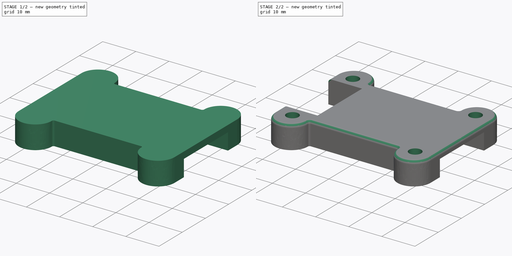
[diagram: build sequence overview — one tinted view per stage of 2, left to right]
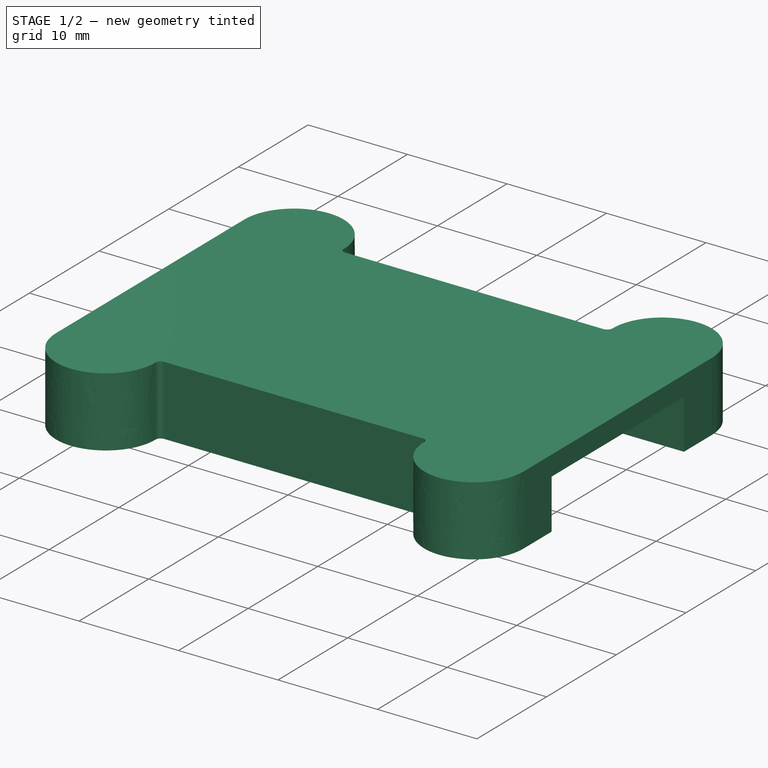
[diagram: stage 1 of 2 — iso view after this stage's code; geometry added in this stage tinted green]
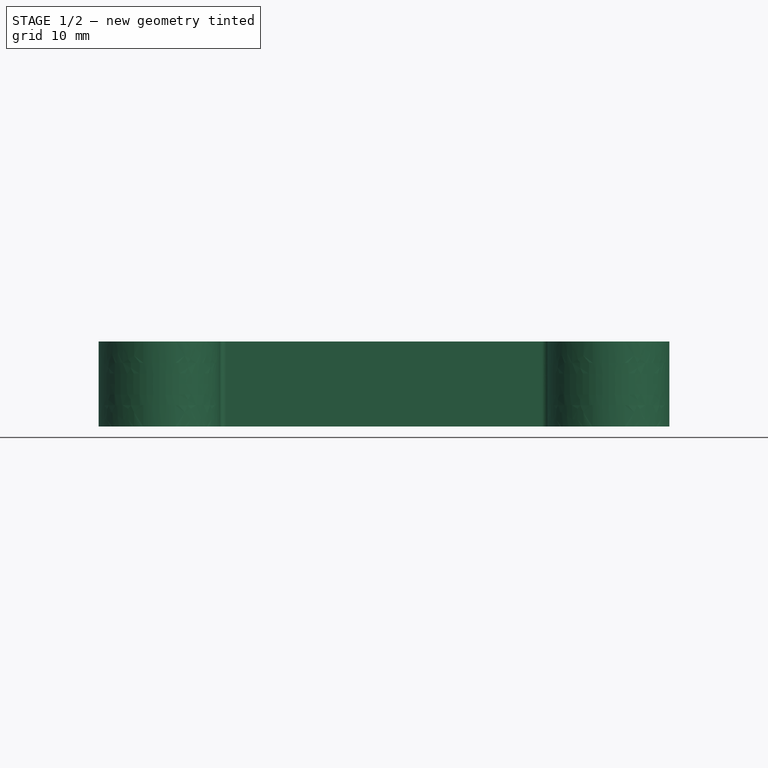
[diagram: stage 1 of 2 — front view after this stage's code; geometry added in this stage tinted green]
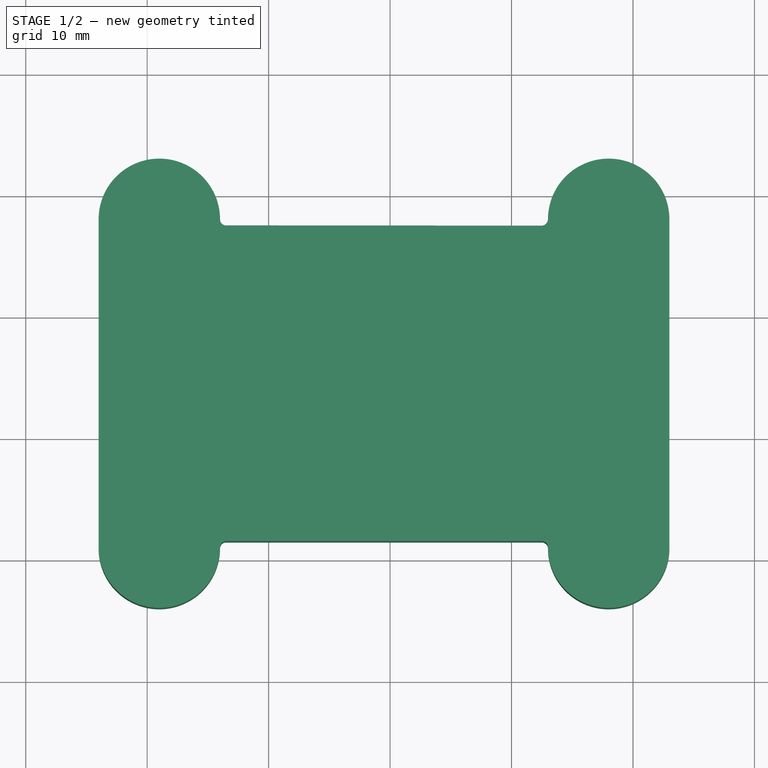
[diagram: stage 1 of 2 — top view after this stage's code; geometry added in this stage tinted green]
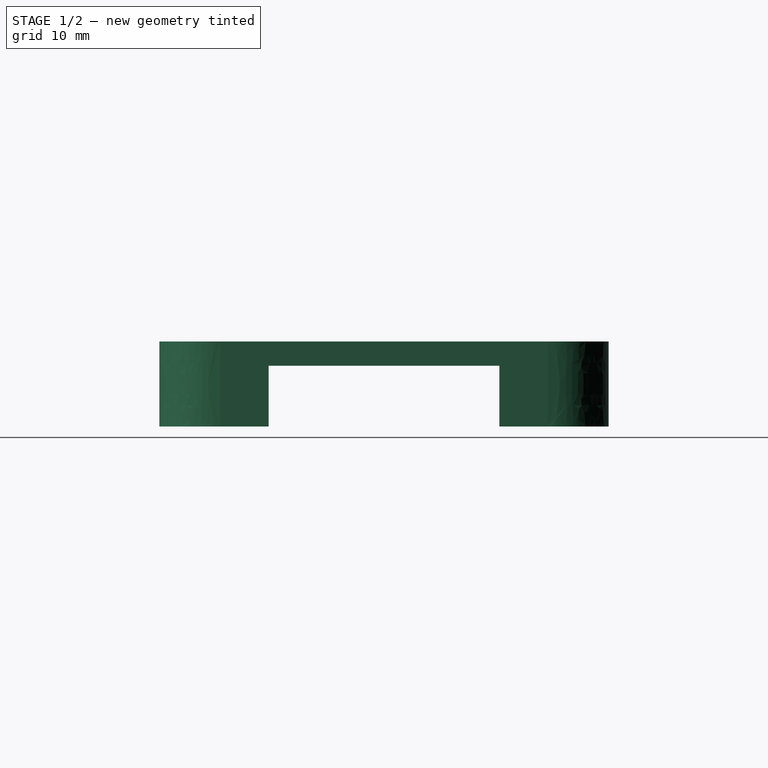
[diagram: stage 1 of 2 — right view after this stage's code; geometry added in this stage tinted green]
FCSTD DOCUMENT  (FreeCAD 0.20R29410 (Git))
Label: casing
License: All rights reserved
LicenseURL: http://en.wikipedia.org/wiki/All_rights_reserved
objects: Sketcher::SketchObject×3, PartDesign::Pocket×2, PartDesign::Pad×1, PartDesign::Fillet×1, PartDesign::Body×1, Part::Feature×1
note: 13 computed .brp shape members not serialized (recipe doc carries the construction recipe); baked Part::Feature solids carry a one-line shape summary decoded from their .brp

FEATURE [Sketcher::SketchObject] Sketch
  FullyConstrained = false
  MapMode = 2
  Support = -> [Sketch]
  sketch-geometry (12):
    g0: BSplineCurve PolesCount=3 KnotsCount=2 Degree=2 IsPeriodic=0
    g1: BSplineCurve PolesCount=3 KnotsCount=2 Degree=2 IsPeriodic=0
    g2: BSplineCurve PolesCount=3 KnotsCount=2 Degree=2 IsPeriodic=0
    g3: BSplineCurve PolesCount=3 KnotsCount=2 Degree=2 IsPeriodic=0
    g4: BSplineCurve PolesCount=5 KnotsCount=3 Degree=2 IsPeriodic=0
    g5: BSplineCurve PolesCount=2 KnotsCount=2 Degree=1 IsPeriodic=0
    g6: BSplineCurve PolesCount=2 KnotsCount=2 Degree=1 IsPeriodic=0
    g7: BSplineCurve PolesCount=2 KnotsCount=2 Degree=1 IsPeriodic=0
    g8: BSplineCurve PolesCount=5 KnotsCount=3 Degree=2 IsPeriodic=0
    g9: BSplineCurve PolesCount=5 KnotsCount=3 Degree=2 IsPeriodic=0
    g10: BSplineCurve PolesCount=2 KnotsCount=2 Degree=1 IsPeriodic=0
    g11: BSplineCurve PolesCount=5 KnotsCount=3 Degree=2 IsPeriodic=0
FEATURE [PartDesign::Pad] Pad
  Direction = (0,0,1)
  Length = 7
  Length2 = 10
  Profile = -> Sketch
  ReferenceAxis = -> Sketch [N_Axis]
  Type = 0
FEATURE [Sketcher::SketchObject] Sketch001
  ExternalGeometry = -> [Pad]
  FullyConstrained = false
  MapMode = 5
  Placement = pos=(56,0,0) rot=(0.57735,-0.57735,-0.57735;2.0944rad)
  Support = -> [Pad]
  sketch-geometry (6):
    g0: LineSegment StartX=66 StartY=5 StartZ=0 EndX=85 EndY=5 EndZ=0
    g1: LineSegment StartX=85 StartY=5 StartZ=0 EndX=85 EndY=-5.06206 EndZ=0
    g2: LineSegment StartX=85 StartY=-5.06206 StartZ=0 EndX=66 EndY=-5.06206 EndZ=0
    g3: LineSegment StartX=66 StartY=-5.06206 StartZ=0 EndX=66 EndY=5 EndZ=0
    g4: LineSegment StartX=85 StartY=5 StartZ=0 EndX=89 EndY=7 EndZ=0
    g5: LineSegment StartX=66 StartY=5 StartZ=0 EndX=62 EndY=7 EndZ=0
  constraints (15):
    c: Coincident(g0,g1)
    c: Coincident(g1,g2)
    c: Coincident(g2,g3)
    c: Coincident(g3,g0)
    c: Horizontal(g0)
    c: Horizontal(g2)
    c: Vertical(g1)
    c: Vertical(g3)
    c: Coincident(g4,g0)
    c: Coincident(g4,g-3)
    c: Coincident(g5,g0)
    c: Coincident(g5,g-4)
    c: Equal(g4,g5)
    c: DistanceY(g-3,g0) = 5
    c: DistanceX(g-4,g0) = 4
FEATURE [PartDesign::Pocket] Pocket
  BaseFeature = -> Pad
  Direction = (1,0,0)
  Length = 5
  Length2 = 5
  Profile = -> Sketch001
  ReferenceAxis = -> Sketch001 [N_Axis]
  Type = 1
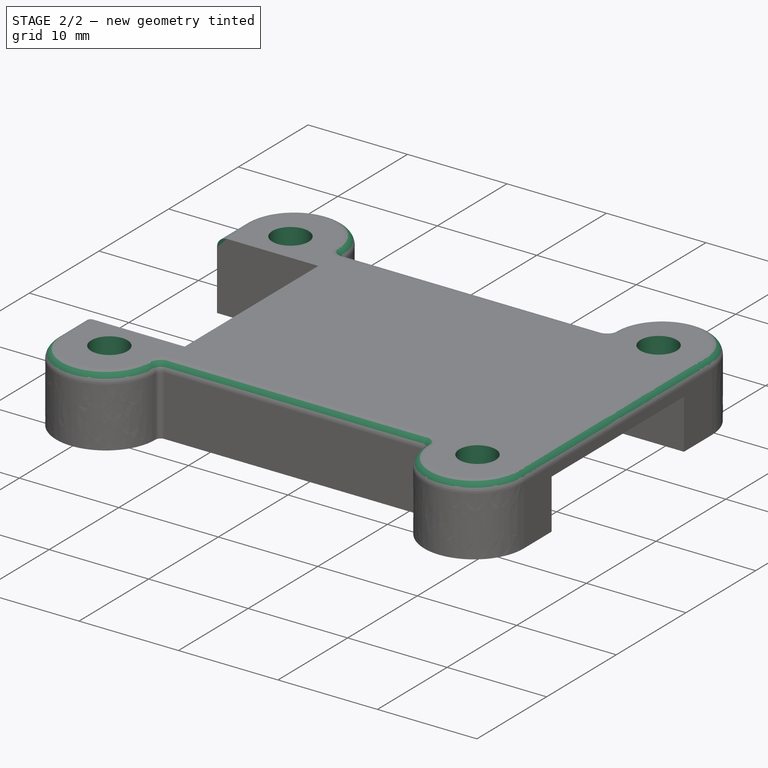
[diagram: stage 2 of 2 — iso view after this stage's code; geometry added in this stage tinted green]
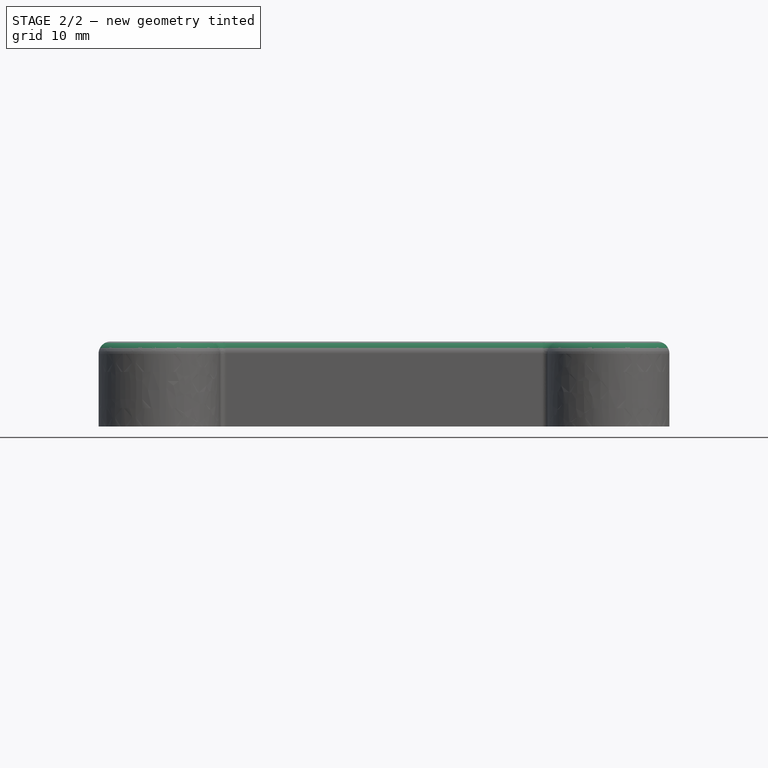
[diagram: stage 2 of 2 — front view after this stage's code; geometry added in this stage tinted green]
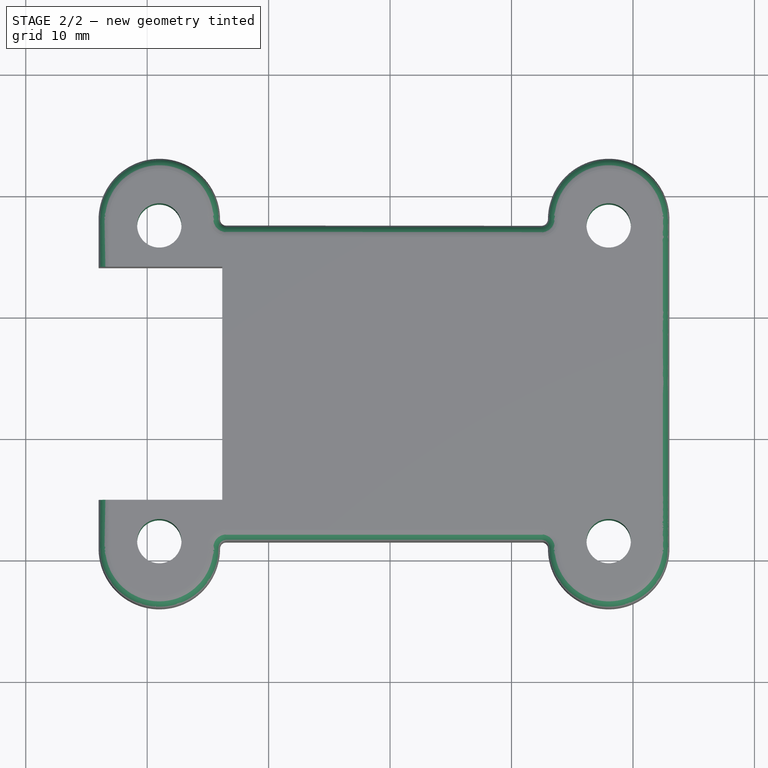
[diagram: stage 2 of 2 — top view after this stage's code; geometry added in this stage tinted green]
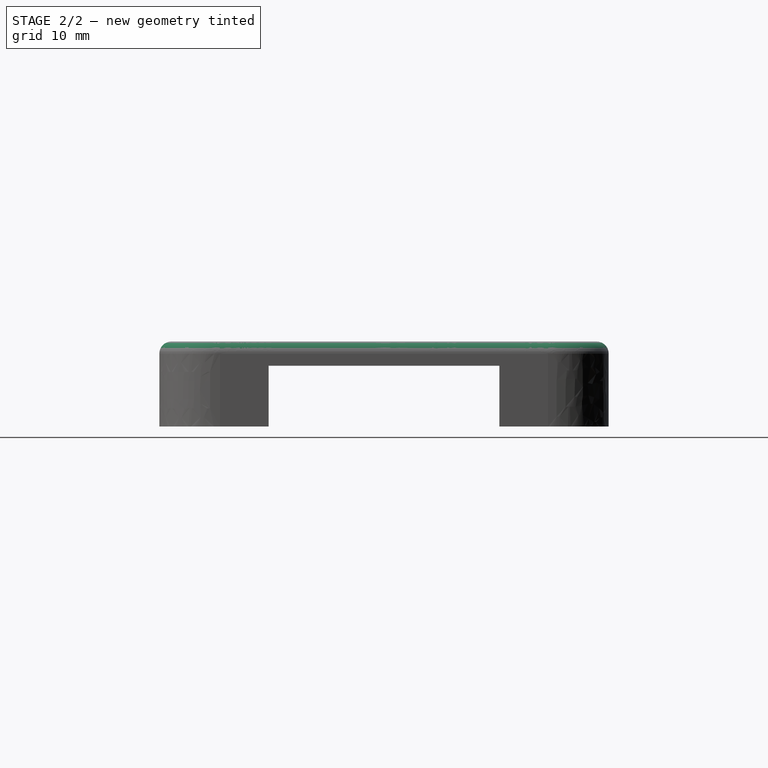
[diagram: stage 2 of 2 — right view after this stage's code; geometry added in this stage tinted green]
FEATURE [Sketcher::SketchObject] Sketch002
  ExternalGeometry = -> [Pocket]
  FullyConstrained = false
  MapMode = 5
  Placement = pos=(0,0,7) rot=(0,0,1;0rad)
  Support = -> [Pocket]
  sketch-geometry (10):
    g0: Circle CenterX=61 CenterY=-62.5 CenterZ=0 NormalX=0 NormalY=0 NormalZ=1 AngleXU=0 Radius=1.825
    g1: Circle CenterX=98 CenterY=-62.5 CenterZ=0 NormalX=0 NormalY=0 NormalZ=1 AngleXU=0 Radius=1.825
    g2: Circle CenterX=98 CenterY=-88.5 CenterZ=0 NormalX=0 NormalY=0 NormalZ=1 AngleXU=0 Radius=1.825
    g3: Circle CenterX=61 CenterY=-88.5 CenterZ=0 NormalX=0 NormalY=0 NormalZ=1 AngleXU=0 Radius=1.825
    g4: LineSegment StartX=49.8312 StartY=-65.9059 StartZ=0 EndX=49.8312 EndY=-85.0941 EndZ=0
    g5: LineSegment StartX=66.1814 StartY=-85.0941 StartZ=0 EndX=66.1814 EndY=-65.9059 EndZ=0
    g6: LineSegment StartX=61 StartY=-62.5 StartZ=0 EndX=66.1814 EndY=-65.9059 EndZ=0
    g7: LineSegment StartX=66.1814 StartY=-85.0941 StartZ=0 EndX=61 EndY=-88.5 EndZ=0
    g8: LineSegment StartX=49.8312 StartY=-65.9059 StartZ=0 EndX=66.1814 EndY=-65.9059 EndZ=0
    g9: LineSegment StartX=66.1814 StartY=-85.0941 StartZ=0 EndX=49.8312 EndY=-85.0941 EndZ=0
  constraints (25):
    c: Horizontal(g3,g-4)
    c: Horizontal(g-4,g2)
    c: Horizontal(g0,g-3)
    c: Horizontal(g-3,g1)
    c: Vertical(g0,g3)
    c: Vertical(g1,g2)
    c: DistanceX(g0,g1) = 37
    c: DistanceX(g1,g-5) = 5
    c: Equal(g2,g3)
    c: Equal(g2,g0)
    c: Equal(g2,g1)
    c: Diameter(g2) = 3.65
    c: Vertical(g4)
    c: Coincident(g6,g0)
    c: Coincident(g7,g3)
    c: Equal(g7,g6)
    c: Coincident(g8,g5)
    c: Horizontal(g8)
    c: Coincident(g9,g5)
    c: Coincident(g9,g4)
    c: Horizontal(g9)
    c: Coincident(g8,g4)
    c: Vertical(g5)
    c: Coincident(g7,g5)
    c: Coincident(g5,g6)
FEATURE [PartDesign::Pocket] Pocket001
  BaseFeature = -> Pocket
  Direction = (0,0,-1)
  Length = 5
  Length2 = 5
  Profile = -> Sketch002
  ReferenceAxis = -> Sketch002 [N_Axis]
  Type = 1
FEATURE [PartDesign::Fillet] Fillet
  Base = -> Pocket001 [Edge10,Edge28]
  BaseFeature = -> Pocket001
  Radius = 1
  SupportTransform = false
  UseAllEdges = false
FEATURE [PartDesign::Body] Body
  Group = -> [Sketch,Pad,Sketch001,Pocket,Sketch002,Pocket001,Fillet]
  Origin = -> Origin
  Tip = -> Fillet
FEATURE [Part::Feature] Solid  label="stlink_v3mini_adapter 1"
  Placement = pos=(0,0,-2) rot=(0.894427,0,0.447214;0rad)
  shape: bbox 47 x 36.99 x 1.58 mm, 178 faces (baked)
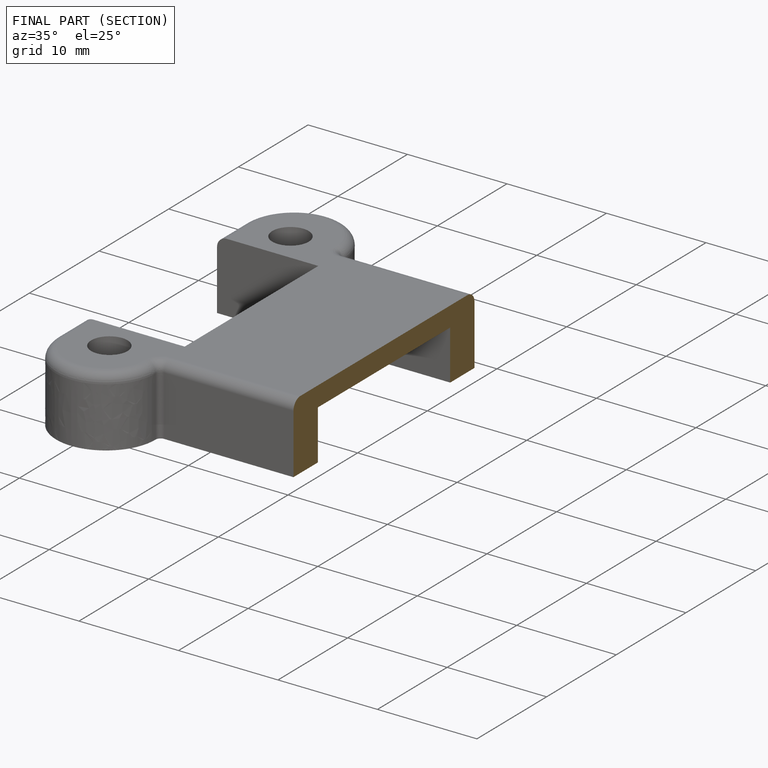
[diagram: finished part — half-section view (interior)]
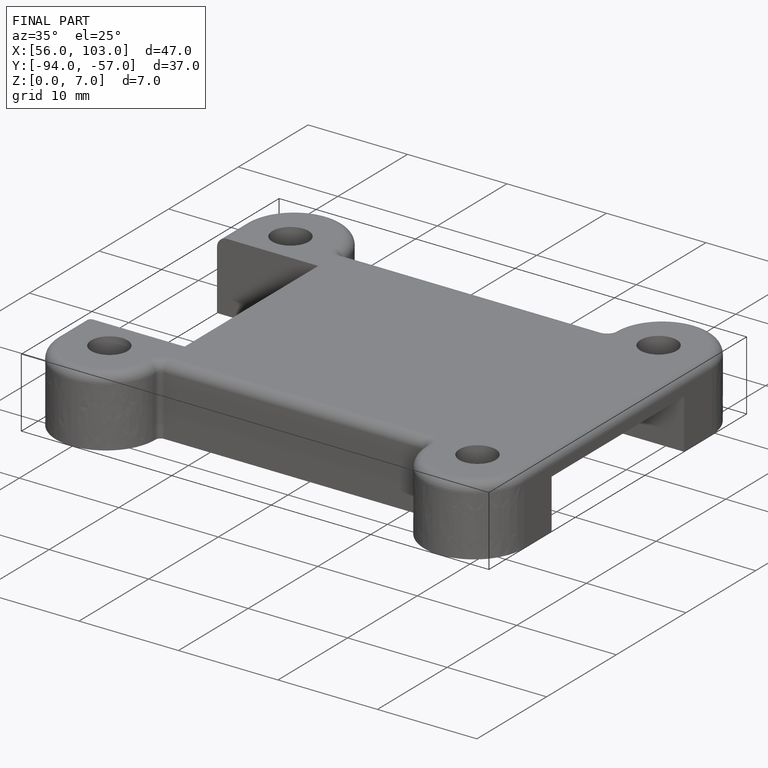
[diagram: finished part — iso view with bounding-box wireframe]
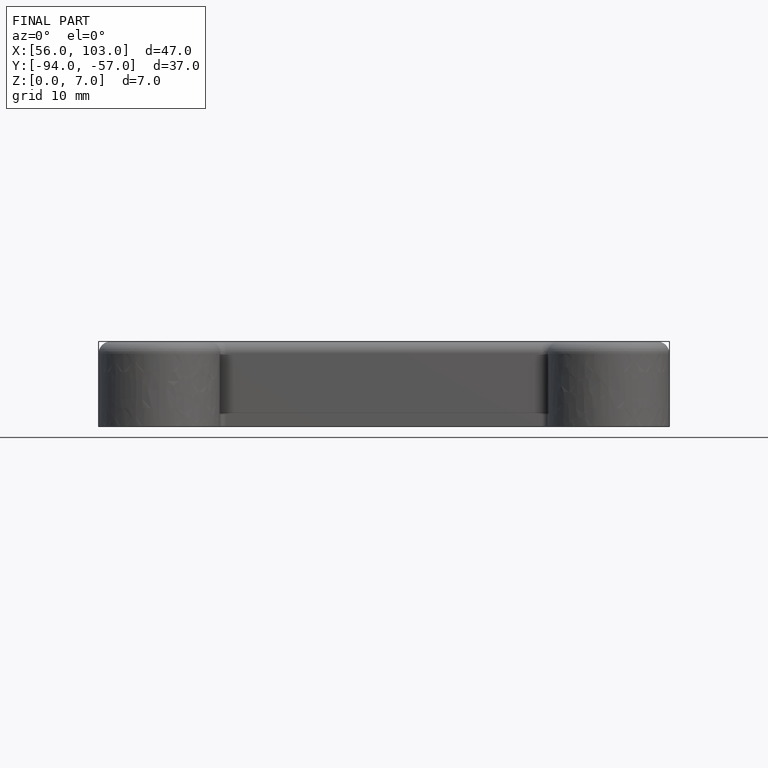
[diagram: finished part — front view with bounding-box wireframe]
